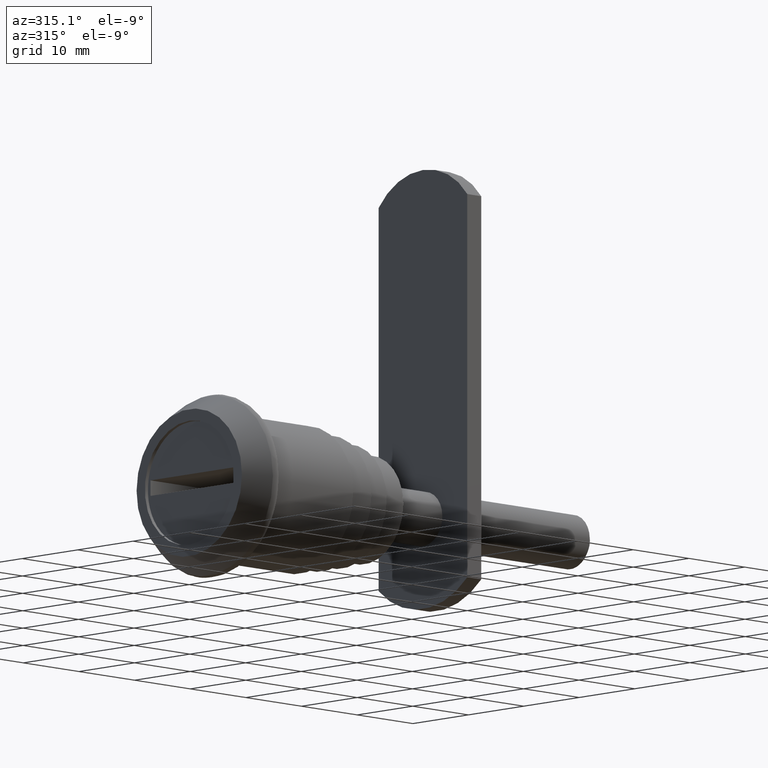
[diagram: clean part render]
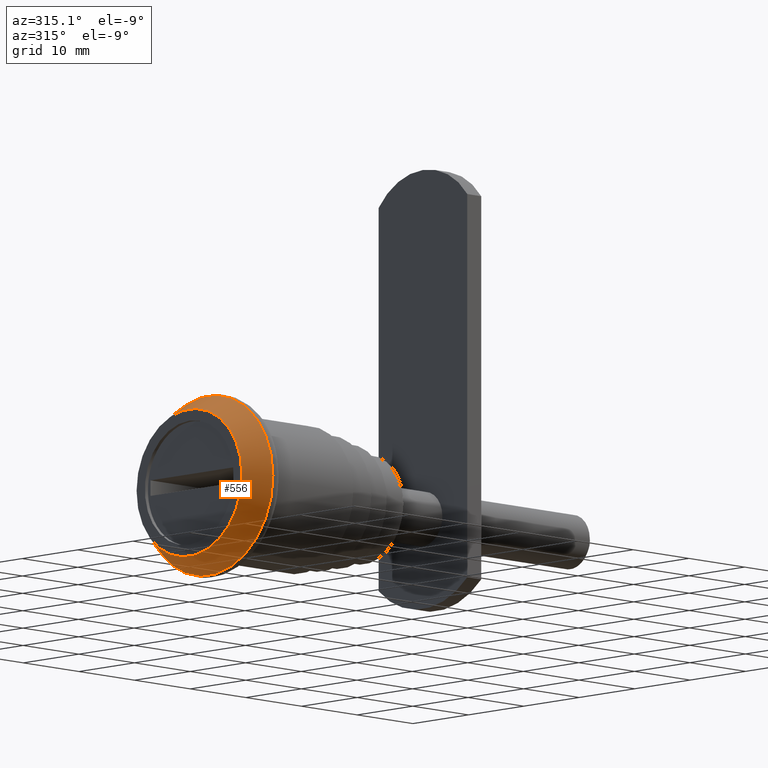
[diagram: same view with one face highlighted and labeled with its STEP entity id]
A machine part, auxiliary view. The second image highlights one B-rep face of the part: STEP entity #556.
In plain terms, the highlighted face is a freeform B-spline surface patch.
Its self-contained STEP definition (entity closure, byte-faithful):
#470=CARTESIAN_POINT('',(3.485504241703438,11.591302544953578,0.0));
#471=VERTEX_POINT('',#470);
#479=CARTESIAN_POINT('',(3.485504241703438,-11.591302544953578,0.0));
#480=VERTEX_POINT('',#479);
#481=CARTESIAN_POINT('',(3.485504241703438,0.0,0.0));
#482=DIRECTION('',(1.0,0.0,0.0));
#483=DIRECTION('',(0.0,1.0,0.0));
#484=AXIS2_PLACEMENT_3D('',#481,#482,#483);
#485=CIRCLE('',#484,11.591302544953578);
#486=EDGE_CURVE('',#471,#480,#485,.T.);
#488=CARTESIAN_POINT('',(3.485504241703438,0.0,0.0));
#489=DIRECTION('',(1.0,0.0,0.0));
#490=DIRECTION('',(0.0,1.0,0.0));
#491=AXIS2_PLACEMENT_3D('',#488,#489,#490);
#492=CIRCLE('',#491,11.591302544953578);
#493=EDGE_CURVE('',#480,#471,#492,.T.);
#501=CARTESIAN_POINT('',(3.485504241703438,11.591302544953578,0.0));
#502=CARTESIAN_POINT('',(3.485504241703438,11.591302544953578,11.591302544953578));
#503=CARTESIAN_POINT('',(3.485504241703438,0.0,11.591302544953578));
#504=CARTESIAN_POINT('',(3.485504241703438,-11.591302544953578,11.591302544953578));
#505=CARTESIAN_POINT('',(3.485504241703438,-11.591302544953578,0.0));
#506=CARTESIAN_POINT('',(3.485504241703438,-11.591302544953578,-11.591302544953578));
#507=CARTESIAN_POINT('',(3.485504241703438,0.0,-11.591302544953578));
#508=CARTESIAN_POINT('',(3.485504241703438,11.591302544953578,-11.591302544953578));
#509=CARTESIAN_POINT('',(3.485504241703438,11.591302544953578,0.0));
#510=CARTESIAN_POINT('',(0.0,9.499999999961801,0.0));
#511=CARTESIAN_POINT('',(0.0,9.499999999961801,9.499999999961801));
#512=CARTESIAN_POINT('',(0.0,0.0,9.499999999961801));
#513=CARTESIAN_POINT('',(0.0,-9.499999999961801,9.499999999961801));
#514=CARTESIAN_POINT('',(0.0,-9.499999999961801,0.0));
#515=CARTESIAN_POINT('',(0.0,-9.499999999961801,-9.499999999961801));
#516=CARTESIAN_POINT('',(0.0,0.0,-9.499999999961801));
#517=CARTESIAN_POINT('',(0.0,9.499999999961801,-9.499999999961801));
#518=CARTESIAN_POINT('',(0.0,9.499999999961801,0.0));
#526=(BOUNDED_SURFACE()B_SPLINE_SURFACE(2,1,((#501,#510),(#502,#511),(#503,#512),(#504,#513),(#505,#514),(#506,#515),(#507,#516),(#508,#517),(#509,#518)),.UNSPECIFIED.,.T.,.F.,.U.)B_SPLINE_SURFACE_WITH_KNOTS((3,2,2,2,3),(2,2),(0.0,0.250000000000000,0.500000000000000,0.750000000000000,1.0),(0.0,4.064761512514817),.UNSPECIFIED.)GEOMETRIC_REPRESENTATION_ITEM()RATIONAL_B_SPLINE_SURFACE(((1.0,1.0),(0.707106781186548,0.707106781186548),(1.0,1.0),(0.707106781186548,0.707106781186548),(1.0,1.0),(0.707106781186548,0.707106781186548),(1.0,1.0),(0.707106781186548,0.707106781186548),(1.0,1.0)))REPRESENTATION_ITEM('')SURFACE());
#527=CARTESIAN_POINT('',(0.0,9.499999999961801,0.0));
#528=VERTEX_POINT('',#527);
#529=CARTESIAN_POINT('',(3.485504241703438,11.591302544953578,0.0));
#530=DIRECTION('',(-0.857492925715831,-0.514495755422048,0.0));
#531=VECTOR('',#530,4.064761512514817);
#532=LINE('',#529,#531);
#533=EDGE_CURVE('',#471,#528,#532,.T.);
#534=ORIENTED_EDGE('',*,*,#533,.T.);
#535=CARTESIAN_POINT('',(0.0,-9.499999999961801,0.0));
#536=VERTEX_POINT('',#535);
#537=CARTESIAN_POINT('',(0.0,0.0,0.0));
#538=DIRECTION('',(1.0,0.0,0.0));
#539=DIRECTION('',(0.0,1.0,0.0));
#540=AXIS2_PLACEMENT_3D('',#537,#538,#539);
#541=CIRCLE('',#540,9.499999999961801);
#542=EDGE_CURVE('',#528,#536,#541,.T.);
#543=ORIENTED_EDGE('',*,*,#542,.T.);
#544=CARTESIAN_POINT('',(0.0,0.0,0.0));
#545=DIRECTION('',(1.0,0.0,0.0));
#546=DIRECTION('',(0.0,1.0,0.0));
#547=AXIS2_PLACEMENT_3D('',#544,#545,#546);
#548=CIRCLE('',#547,9.499999999961801);
#549=EDGE_CURVE('',#536,#528,#548,.T.);
#550=ORIENTED_EDGE('',*,*,#549,.T.);
#551=ORIENTED_EDGE('',*,*,#533,.F.);
#552=ORIENTED_EDGE('',*,*,#493,.F.);
#553=ORIENTED_EDGE('',*,*,#486,.F.);
#554=EDGE_LOOP('',(#534,#543,#550,#551,#552,#553));
#555=FACE_OUTER_BOUND('',#554,.T.);
#556=ADVANCED_FACE('',(#555),#526,.F.);